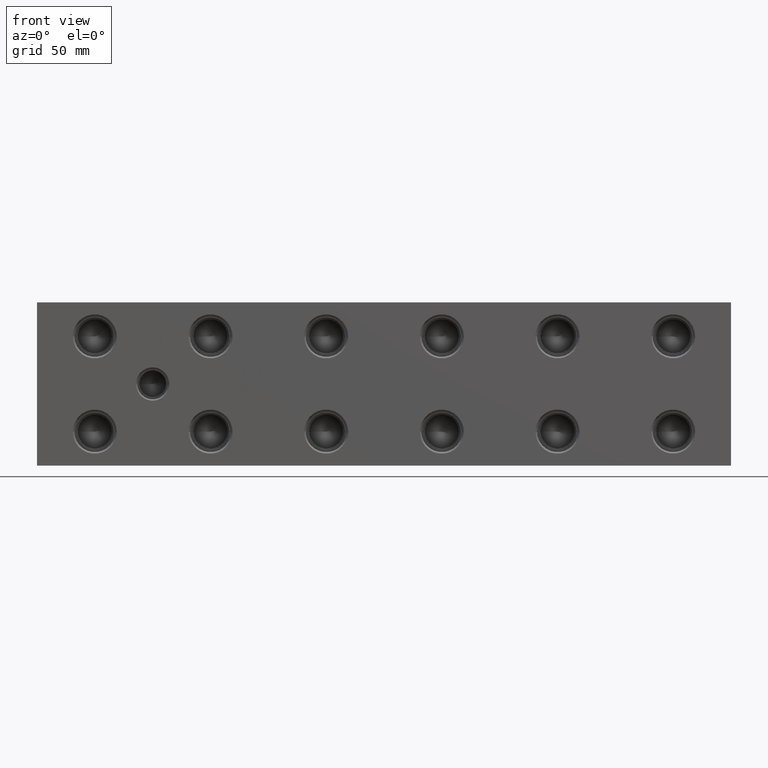
[diagram: clean part render]
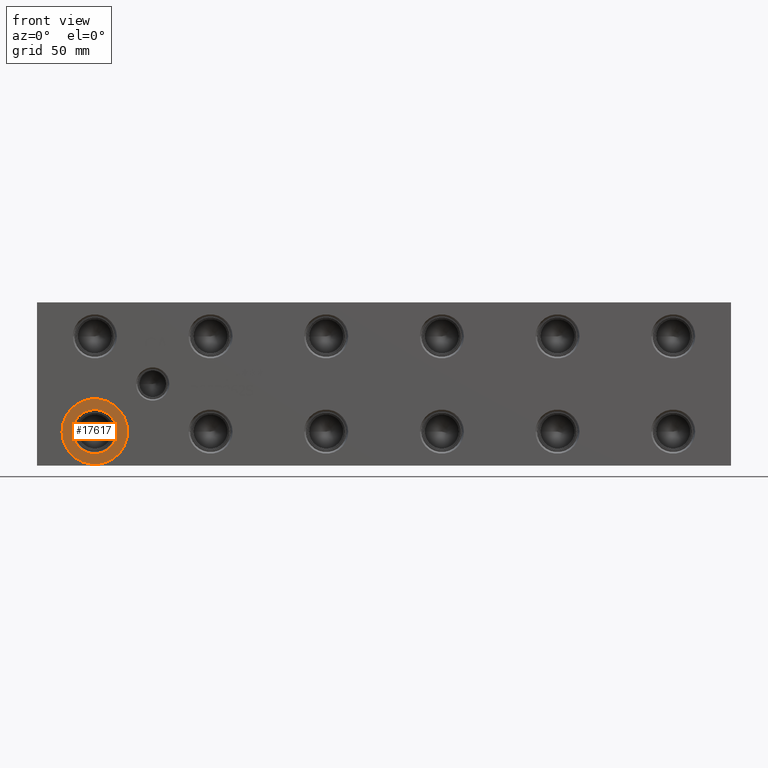
[diagram: same view with one face highlighted and labeled with its STEP entity id]
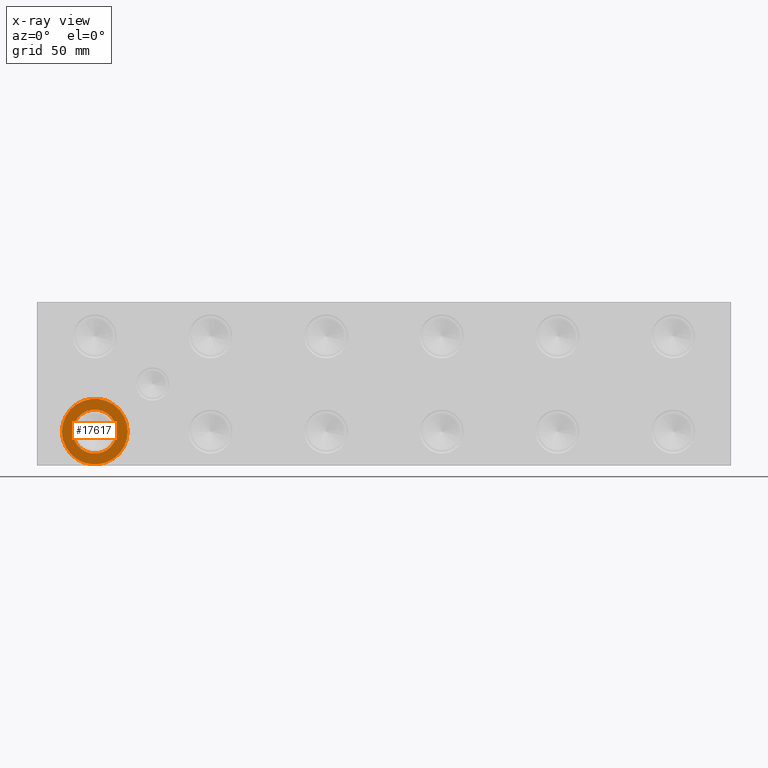
[diagram: x-ray of the same camera — body ghosted, the highlighted face saturated]
A machine part, front view. The second image highlights one B-rep face of the part: STEP entity #17617.
The next image is the same camera in x-ray: the body ghosted, the highlighted face saturated — about 0% of this face is hidden behind the body in this view.
In plain terms, the highlighted planar face has unit normal (0, 1, 0).
Its self-contained STEP definition (entity closure, byte-faithful):
#442=CIRCLE('',#18546,15.3162);
#443=CIRCLE('',#18548,10.2997);
#778=FACE_BOUND('',#3238,.T.);
#1310=PLANE('',#18547);
#2121=FACE_OUTER_BOUND('',#3237,.T.);
#3237=EDGE_LOOP('',(#15123));
#3238=EDGE_LOOP('',(#15124));
#8512=VERTEX_POINT('',#29885);
#8513=VERTEX_POINT('',#29889);
#10779=EDGE_CURVE('',#8512,#8512,#442,.T.);
#10780=EDGE_CURVE('',#8513,#8513,#443,.T.);
#15123=ORIENTED_EDGE('',*,*,#10779,.F.);
#15124=ORIENTED_EDGE('',*,*,#10780,.T.);
#17617=ADVANCED_FACE('',(#2121,#778),#1310,.F.);
#18546=AXIS2_PLACEMENT_3D('',#29887,#21747,#21748);
#18547=AXIS2_PLACEMENT_3D('',#29888,#21749,#21750);
#18548=AXIS2_PLACEMENT_3D('',#29890,#21751,#21752);
#21747=DIRECTION('center_axis',(0.,1.,0.));
#21748=DIRECTION('ref_axis',(1.,0.,0.));
#21749=DIRECTION('center_axis',(0.,1.,0.));
#21750=DIRECTION('ref_axis',(0.,0.,1.));
#21751=DIRECTION('center_axis',(0.,1.,0.));
#21752=DIRECTION('ref_axis',(1.,0.,0.));
#29885=CARTESIAN_POINT('',(11.6586,0.7874,15.875));
#29887=CARTESIAN_POINT('Origin',(26.9748,0.7874,15.875));
#29888=CARTESIAN_POINT('Origin',(37.2745,0.7874,15.875));
#29889=CARTESIAN_POINT('',(16.6751,0.7874,15.875));
#29890=CARTESIAN_POINT('Origin',(26.9748,0.7874,15.875));